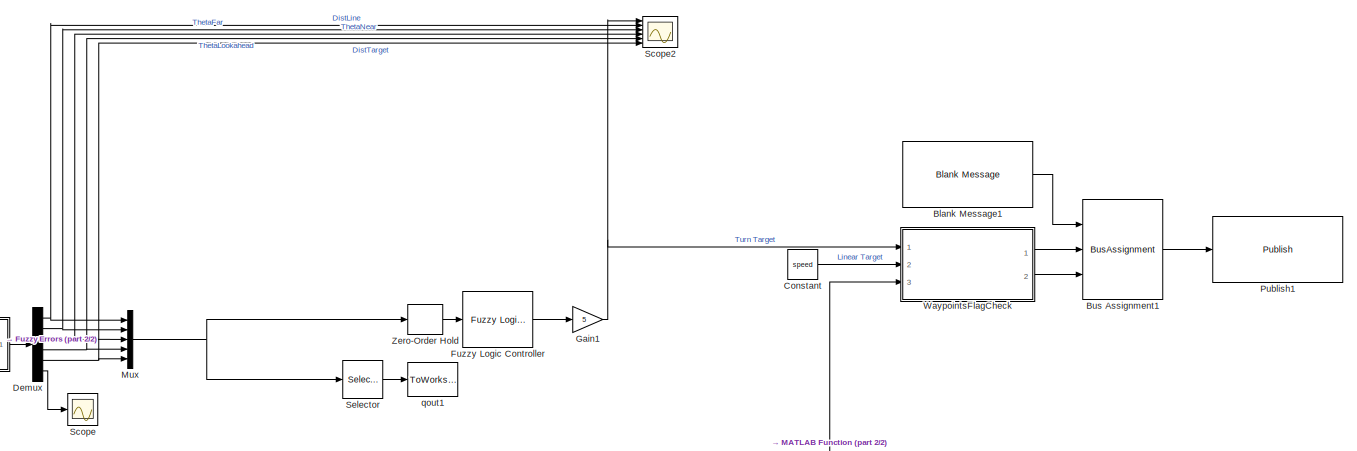
[diagram: root canvas - part 1/2, top right region]
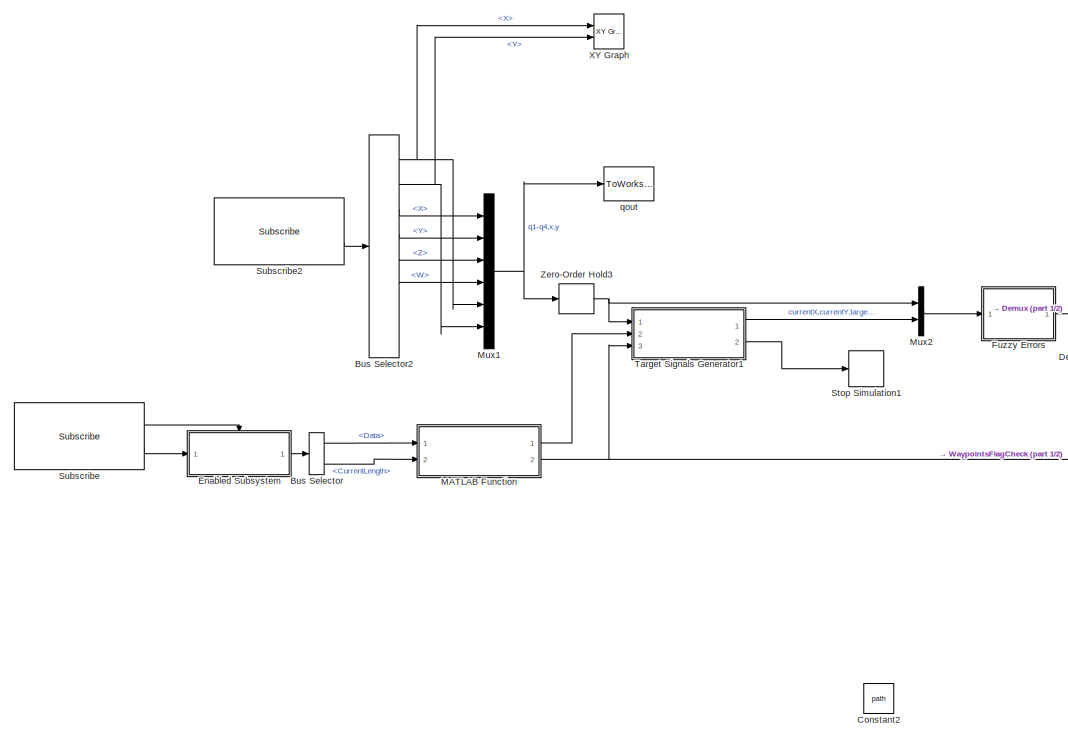
[diagram: root canvas - part 2/2, left side, full height]
MODEL slx_a07018e1334e
KIND model
CONFIG AbsTol = auto
CONFIG EnableMultiTasking = off
CONFIG FixedStep = 0.01
CONFIG MaxStep = auto
CONFIG MinStep = auto
CONFIG RelTol = 1e-3
CONFIG SampleTimeConstraint = Unconstrained
CONFIG Solver = FixedStepAuto
CONFIG SolverName = FixedStepAuto
CONFIG StartTime = 0.0
CONFIG StopTime = 1000.0
BLOCK [Reference] Blank Message1  REF=robotlib/Blank Message
  Ports = [0, 1]
  SourceBlock = robotlib/Blank Message
  SourceProductBaseCode = RO
  SourceProductName = Robotics System Toolbox
  SourceType = ROS Blank Message
BLOCK [BusAssignment] Bus Assignment1
  AssignedSignals = Linear.X,Angular.Z
  Ports = [3, 1]
BLOCK [BusSelector] Bus Selector
  OutputAsBus = off
  OutputSignals = Data,Data_SL_Info.ReceivedLength,Data_SL_Info.CurrentLength
  Ports = [1, 3]
BLOCK [BusSelector] Bus Selector2
  OutputAsBus = off
  OutputSignals = Pose.Pose.Position.X,Pose.Pose.Position.Y,Pose.Pose.Orientation.X,Pose.Pose.Orientation.Y,Pose.Pose.Orientation.Z,Pose.Pose.Orientation.W,Twist.Twist.Linear.X,Twist.Twist.Angular.Z
  Ports = [1, 8]
BLOCK [Constant] Constant
  Value = speed
BLOCK [Constant] Constant2
  Commented = on
  Value = path
BLOCK [Demux] Demux
  DisplayOption = bar
  Outputs = 6
  Ports = [1, 6]
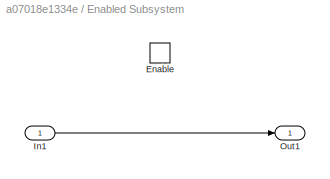
BLOCK [SubSystem] Enabled Subsystem
  Ports = [1, 1, 1]
  RequestExecContextInheritance = off
  TreatAsAtomicUnit = on
BLOCK [EnablePort] Enabled Subsystem/Enable
  Ports = []
BLOCK [Inport] Enabled Subsystem/In1
  IconDisplay = Port number
BLOCK [Outport] Enabled Subsystem/Out1
  IconDisplay = Port number
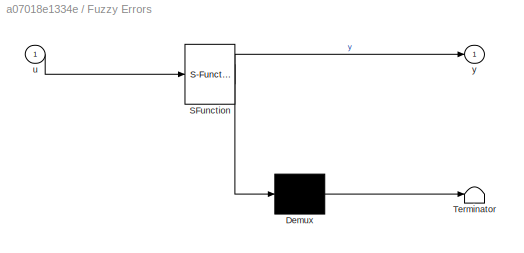
BLOCK [SubSystem] Fuzzy Errors
  ErrorFcn = Stateflow.Translate.translate
  PermitHierarchicalResolution = ExplicitOnly
  Ports = [1, 1]
  RequestExecContextInheritance = off
  SFBlockType = MATLAB Function
  TreatAsAtomicUnit = on
BLOCK [Demux] Fuzzy Errors/ Demux 
  Outputs = 1
  Ports = [1, 1]
BLOCK [S-Function] Fuzzy Errors/ SFunction 
  EnableBusSupport = on
  FunctionName = sf_sfun
  PortCounts = [1 2]
  Ports = [1, 2]
  SFcnIsStateOwnerBlock = off
  SFunctionDeploymentMode = off
  Tag = Stateflow S-Function Fuzzy_ROS_ROSPath 5
BLOCK [Terminator] Fuzzy Errors/ Terminator 
BLOCK [Inport] Fuzzy Errors/u
  IconDisplay = Port number
BLOCK [Outport] Fuzzy Errors/y
  IconDisplay = Port number
BLOCK [Reference] Fuzzy Logic Controller  REF=fuzblock/Fuzzy Logic   (lib defined in mdl_858b3b3e7478)
Controller
  Ports = [1, 1]
  SourceBlock = fuzblock/Fuzzy Logic \nController
  SourceProductBaseCode = FL
  SourceProductName = Fuzzy Logic Toolbox
  SourceType = Fuzzy Inference System
BLOCK [Gain] Gain1
  Gain = 5
  OutDataTypeStr = Inherit: Inherit via internal rule
  ParamDataTypeStr = Inherit: Inherit via internal rule
  SaturateOnIntegerOverflow = off
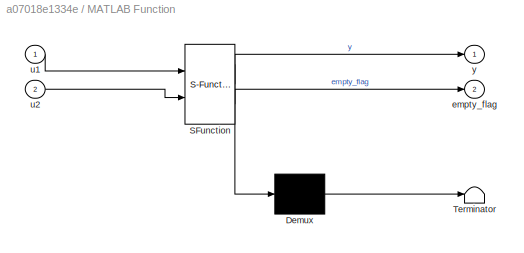
BLOCK [SubSystem] MATLAB Function
  ErrorFcn = Stateflow.Translate.translate
  PermitHierarchicalResolution = ExplicitOnly
  Ports = [2, 2]
  RequestExecContextInheritance = off
  SFBlockType = MATLAB Function
  TreatAsAtomicUnit = on
BLOCK [Demux] MATLAB Function/ Demux 
  Outputs = 1
  Ports = [1, 1]
BLOCK [S-Function] MATLAB Function/ SFunction 
  EnableBusSupport = on
  FunctionName = sf_sfun
  PortCounts = [2 3]
  Ports = [2, 3]
  SFcnIsStateOwnerBlock = off
  SFunctionDeploymentMode = off
  Tag = Stateflow S-Function Fuzzy_ROS_ROSPath 2
BLOCK [Terminator] MATLAB Function/ Terminator 
BLOCK [Outport] MATLAB Function/empty_flag
  IconDisplay = Port number
  Port = 2
BLOCK [Inport] MATLAB Function/u1
  IconDisplay = Port number
BLOCK [Inport] MATLAB Function/u2
  IconDisplay = Port number
  Port = 2
BLOCK [Outport] MATLAB Function/y
  IconDisplay = Port number
BLOCK [Mux] Mux
  DisplayOption = bar
  Inputs = 5
  Ports = [5, 1]
BLOCK [Mux] Mux1
  DisplayOption = bar
  Inputs = 6
  Ports = [6, 1]
BLOCK [Mux] Mux2
  DisplayOption = bar
  Inputs = 2
  Ports = [2, 1]
BLOCK [Reference] Publish1  REF=robotlib/Publish
  Ports = [1]
  SourceBlock = robotlib/Publish
  SourceProductBaseCode = RO
  SourceProductName = Robotics System Toolbox
  SourceType = ROS Publish
BLOCK [Scope] Scope
  Floating = off
  NumInputPorts = 1
  Ports = [1]
  ScopeSpecificationString = Simulink.scopes.TimeScopeBlockCfg('CurrentConfiguration', extmgr.ConfigurationSet(extmgr.Configuration('Core','General UI',true),extmgr.Configuration('Core','Source UI',true),extmgr.Configuration('Sources','WiredSimulink',true,'DataLoggingVariableName','ScopeData1'),extmgr.Configuration('Visuals','Time Domain',true,'SerializedDisplays',{struct('MinYLimReal','-3.92639','MaxYLimReal','3.92634','YLab...<+1388ch>
BLOCK [Scope] Scope2
  Floating = off
  NumInputPorts = 6
  Ports = [6]
  ScopeSpecificationString = Simulink.scopes.TimeScopeBlockCfg('CurrentConfiguration', extmgr.ConfigurationSet(extmgr.Configuration('Core','General UI',true),extmgr.Configuration('Core','Source UI',true),extmgr.Configuration('Sources','WiredSimulink',true),extmgr.Configuration('Visuals','Time Domain',true,'SerializedDisplays',{struct('MinYLimReal','-3.4128','MaxYLimReal','5.47303','YLabelReal','','MinYLimMag','0.00000','MaxYL...<+1443ch>
BLOCK [Selector] Selector
  IndexOptions = Index vector (dialog)
  Indices = [1]
  InputPortWidth = 5
  OutputSizes = 1
  Ports = [1, 1]
BLOCK [Stop] Stop Simulation1
BLOCK [Reference] Subscribe  REF=robotlib/Subscribe
  Ports = [0, 2]
  SourceBlock = robotlib/Subscribe
  SourceProductBaseCode = RO
  SourceProductName = Robotics System Toolbox
  SourceType = ROS Subscribe
BLOCK [Reference] Subscribe2  REF=robotlib/Subscribe
  Ports = [0, 2]
  SourceBlock = robotlib/Subscribe
  SourceProductBaseCode = RO
  SourceProductName = Robotics System Toolbox
  SourceType = ROS Subscribe
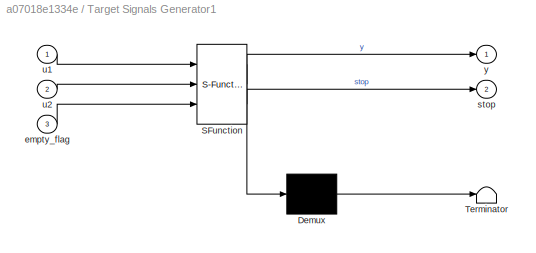
BLOCK [SubSystem] Target Signals Generator1
  ErrorFcn = Stateflow.Translate.translate
  PermitHierarchicalResolution = ExplicitOnly
  Ports = [3, 2]
  RequestExecContextInheritance = off
  SFBlockType = MATLAB Function
  TreatAsAtomicUnit = on
BLOCK [Demux] Target Signals Generator1/ Demux 
  Outputs = 1
  Ports = [1, 1]
BLOCK [S-Function] Target Signals Generator1/ SFunction 
  EnableBusSupport = on
  FunctionName = sf_sfun
  PortCounts = [3 3]
  Ports = [3, 3]
  SFcnIsStateOwnerBlock = off
  SFunctionDeploymentMode = off
  Tag = Stateflow S-Function Fuzzy_ROS_ROSPath 6
BLOCK [Terminator] Target Signals Generator1/ Terminator 
BLOCK [Inport] Target Signals Generator1/empty_flag
  IconDisplay = Port number
  Port = 3
BLOCK [Outport] Target Signals Generator1/stop
  IconDisplay = Port number
  Port = 2
BLOCK [Inport] Target Signals Generator1/u1
  IconDisplay = Port number
BLOCK [Inport] Target Signals Generator1/u2
  IconDisplay = Port number
  Port = 2
BLOCK [Outport] Target Signals Generator1/y
  IconDisplay = Port number
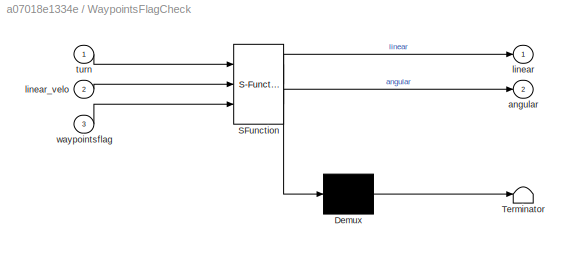
BLOCK [SubSystem] WaypointsFlagCheck
  ErrorFcn = Stateflow.Translate.translate
  PermitHierarchicalResolution = ExplicitOnly
  Ports = [3, 2]
  RequestExecContextInheritance = off
  SFBlockType = MATLAB Function
  TreatAsAtomicUnit = on
BLOCK [Demux] WaypointsFlagCheck/ Demux 
  Outputs = 1
  Ports = [1, 1]
BLOCK [S-Function] WaypointsFlagCheck/ SFunction 
  EnableBusSupport = off
  FunctionName = sf_sfun
  PortCounts = [3 3]
  Ports = [3, 3]
  SFcnIsStateOwnerBlock = off
  SFunctionDeploymentMode = off
  Tag = Stateflow S-Function Fuzzy_ROS_ROSPath 1
BLOCK [Terminator] WaypointsFlagCheck/ Terminator 
BLOCK [Outport] WaypointsFlagCheck/angular
  IconDisplay = Port number
  Port = 2
BLOCK [Outport] WaypointsFlagCheck/linear
  IconDisplay = Port number
BLOCK [Inport] WaypointsFlagCheck/linear_velo
  IconDisplay = Port number
  Port = 2
BLOCK [Inport] WaypointsFlagCheck/turn
  IconDisplay = Port number
BLOCK [Inport] WaypointsFlagCheck/waypointsflag
  IconDisplay = Port number
  Port = 3
BLOCK [Reference] XY Graph  REF=simulink/Sinks/XY Graph
  Ports = [2]
  SourceBlock = simulink/Sinks/XY Graph
  SourceProductBaseCode = SL
  SourceProductName = Simulink
  SourceType = XY scope.
BLOCK [ZeroOrderHold] Zero-Order Hold
  SampleTime = .001
BLOCK [ZeroOrderHold] Zero-Order Hold3
  SampleTime = .001
BLOCK [ToWorkspace] qout
  MaxDataPoints = inf
  Ports = [1]
  SampleTime = -1
  VariableName = xout
BLOCK [ToWorkspace] qout1
  MaxDataPoints = inf
  Ports = [1]
  SampleTime = -1
  VariableName = Eout
LINE Blank Message1:1 -> Bus Assignment1:1
LINE Bus Assignment1:1 -> Publish1:1
NET Bus Selector2:1 -> Mux1:5, XY Graph:1
NET Bus Selector2:2 -> Mux1:6, XY Graph:2
LINE Bus Selector2:3 -> Mux1:1
LINE Bus Selector2:4 -> Mux1:2
LINE Bus Selector2:5 -> Mux1:3
LINE Bus Selector2:6 -> Mux1:4
LINE Bus Selector:1 -> MATLAB Function:1
LINE Bus Selector:3 -> MATLAB Function:2
LINE Constant:1 -> WaypointsFlagCheck:2
NET Demux:1 -> Mux:1, Scope2:2
NET Demux:2 -> Mux:2, Scope2:3
NET Demux:3 -> Mux:3, Scope2:4
NET Demux:4 -> Mux:4, Scope2:5
NET Demux:5 -> Mux:5, Scope2:6
LINE Demux:6 -> Scope:1
LINE Enabled Subsystem/In1:1 -> Enabled Subsystem/Out1:1
LINE Enabled Subsystem:1 -> Bus Selector:1
LINE Fuzzy Errors:1 -> Demux:1
LINE Fuzzy Logic Controller:1 -> Gain1:1
NET Gain1:1 -> Scope2:1, WaypointsFlagCheck:1
LINE MATLAB Function:1 -> Target Signals Generator1:2
NET MATLAB Function:2 -> Target Signals Generator1:3, WaypointsFlagCheck:3
NET Mux1:1 -> Zero-Order Hold3:1, qout:1
LINE Mux2:1 -> Fuzzy Errors:1
NET Mux:1 -> Selector:1, Zero-Order Hold:1
LINE Selector:1 -> qout1:1
LINE Subscribe2:2 -> Bus Selector2:1
LINE Subscribe:1 -> Enabled Subsystem:enable
LINE Subscribe:2 -> Enabled Subsystem:1
LINE Target Signals Generator1:1 -> Mux2:2
LINE Target Signals Generator1:2 -> Stop Simulation1:1
LINE WaypointsFlagCheck:1 -> Bus Assignment1:2
LINE WaypointsFlagCheck:2 -> Bus Assignment1:3
NET Zero-Order Hold3:1 -> Mux2:1, Target Signals Generator1:1
LINE Zero-Order Hold:1 -> Fuzzy Logic Controller:1
note: NET lines group one-source signal fan-out (src -> all destinations, sorted); 1:1 wires keep LINE
CHART WaypointsFlagCheck states=1 transitions=1
  STATE_LABEL 'eML_blk_kernel()'
  STATE_LABEL 'SCRIPT:\nfunction [linear, angular] = fcn(turn, linear_velo, waypointsflag)\n\nif(waypointsflag==0)\n    linear=0;\n    angular=0;\nend\n\nif(waypointsflag==1)\n    linear=linear_velo;\n    angular=turn;\nend\n    \n\n\n\n'
CHART MATLAB Function states=1 transitions=1
  STATE_LABEL 'eML_blk_kernel()'
  STATE_LABEL 'SCRIPT:\nfunction [y, empty_flag] = fcn(u1,u2)\nu1 = double(u1);\ntest_array = u1(1:6);\nempty_flag = 0;\npath_length = u2;\ndisp(path_length)\npath = [0, 0;100, 100];\n\nfor i = 1:6 \n    if test_array(i) ~= 0\n        empty_flag = 1;\n        break\n    end\nend\n\nif empty_flag == 0\n    for i = 1 : pathlength/2\n        path(i,:) = [u1(2*i-1),u1(2i)];\n    end\nend\ny = path;\n'
CHART Fuzzy Errors states=1 transitions=1
  STATE_LABEL 'eML_blk_kernel()'
  STATE_LABEL 'SCRIPT:\nfunction y  = fcn(u)\n\n%jackal dyanamic model\npos=[u(5) u(6)]; % [x,y]\nq=[u(1) u(2) u(3) u(4)]; % orientation quaternion\ncurrentAngle=atan2(2*(q(1)*q(4)+q(2)*q(3)),1-2*(q(3)^2+q(4)^2));% Angle robot is currently facing\n\ncurrentPoint=[u(7) u(8)];\ntarget=[u(9) u(10)];\nfuture=[u(11) u(12)];\n\nA = [(currentPoint(2)-target(2)), target(1)-currentPoint(1); target(1)-currentPoint(1), target(2)-curre...<+1373ch>'
CHART Target Signals Generator1 states=1 transitions=1
  STATE_LABEL 'eML_blk_kernel()'
  STATE_LABEL 'SCRIPT:\nfunction [y,stop] = fcn(u1,u2,empty_flag)\n\npersistent pathcount;\npersistent pathlength;\npersistent path; %error in code, initially used path but this is already a matlab function\npersistent pathPre;\npersistent waypointsflag;\npersistent insideflag;\n\nif isempty(waypointsflag)\n    waypointsflag=0;\n    insideflag=0;\nend\n\nif (isempty(pathcount)||waypointsflag==0) %until the first time we get a ...<+1560ch>'
